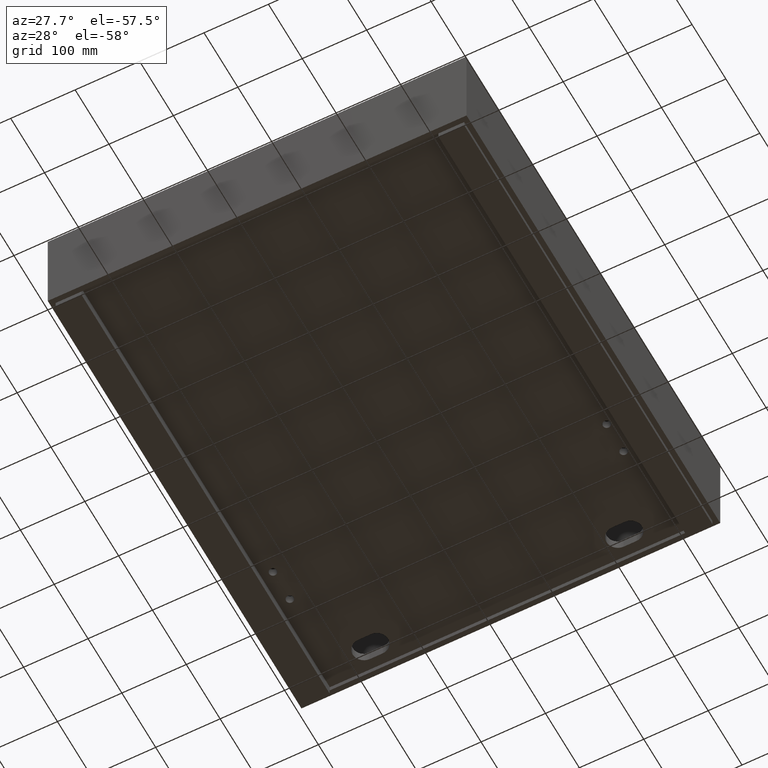
[diagram: clean part render]
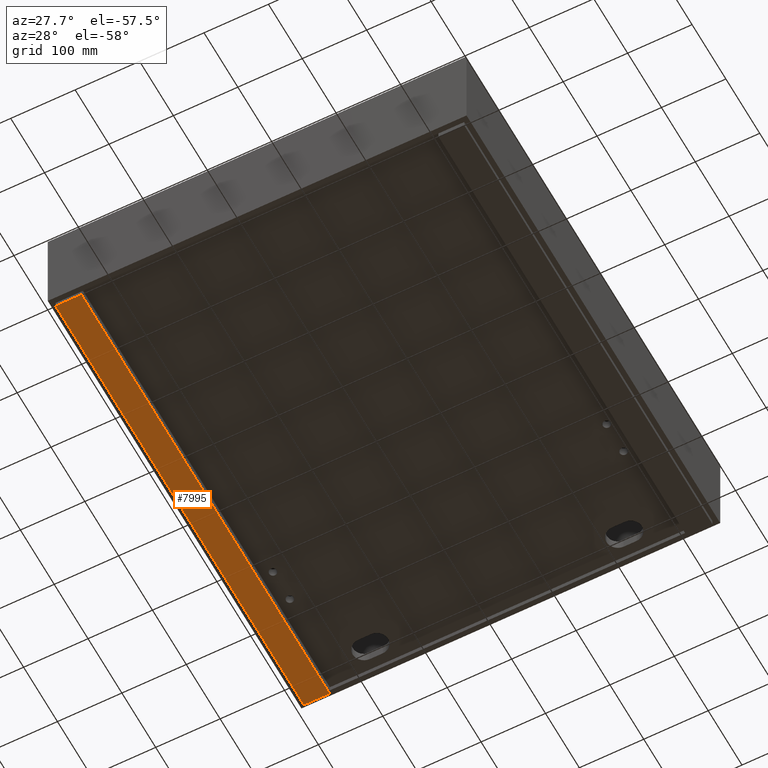
[diagram: same view with one face highlighted and labeled with its STEP entity id]
A machine part, auxiliary view. The second image highlights one B-rep face of the part: STEP entity #7995.
In plain terms, the highlighted planar face has unit normal (-0, 0, 1).
Its self-contained STEP definition (entity closure, byte-faithful):
#121 = VERTEX_POINT ( 'NONE', #4682 ) ;
#515 = CARTESIAN_POINT ( 'NONE',  ( 47.99999999999994316, 8.000000000000000000, -158.0000000000002558 ) ) ;
#1495 = LINE ( 'NONE', #4985, #9634 ) ;
#1614 = ORIENTED_EDGE ( 'NONE', *, *, #8960, .T. ) ;
#1617 = VECTOR ( 'NONE', #2359, 1000.000000000000000 ) ;
#1710 = DIRECTION ( 'NONE',  ( -1.134424071483470690E-16, -1.000000000000000000, 0.0000000000000000000 ) ) ;
#2206 = VECTOR ( 'NONE', #10923, 1000.000000000000000 ) ;
#2359 = DIRECTION ( 'NONE',  ( -1.000000000000000000, -0.0000000000000000000, -0.0000000000000000000 ) ) ;
#2956 = CARTESIAN_POINT ( 'NONE',  ( -2.419716848542008714E-15, 0.0000000000000000000, -158.0000000000002558 ) ) ;
#3220 = EDGE_CURVE ( 'NONE', #121, #6301, #1495, .T. ) ;
#3482 = CARTESIAN_POINT ( 'NONE',  ( 48.00000000000002842, 742.0000000000000000, -158.0000000000002558 ) ) ;
#3923 = LINE ( 'NONE', #7413, #2206 ) ;
#4186 = ORIENTED_EDGE ( 'NONE', *, *, #3220, .T. ) ;
#4682 = CARTESIAN_POINT ( 'NONE',  ( 7.999999999999910294, 8.000000000000000000, -158.0000000000002558 ) ) ;
#4803 = EDGE_LOOP ( 'NONE', ( #4186, #1614, #8546, #8192 ) ) ;
#4985 = CARTESIAN_POINT ( 'NONE',  ( 8.000000000000000000, 742.0000000000000000, -158.0000000000002558 ) ) ;
#5896 = EDGE_CURVE ( 'NONE', #11009, #8406, #6056, .T. ) ;
#6056 = LINE ( 'NONE', #9568, #6344 ) ;
#6301 = VERTEX_POINT ( 'NONE', #6899 ) ;
#6344 = VECTOR ( 'NONE', #1710, 1000.000000000000000 ) ;
#6444 = DIRECTION ( 'NONE',  ( -0.0000000000000000000, 0.0000000000000000000, 1.000000000000000000 ) ) ;
#6554 = EDGE_CURVE ( 'NONE', #8406, #121, #6703, .T. ) ;
#6703 = LINE ( 'NONE', #10218, #1617 ) ;
#6899 = CARTESIAN_POINT ( 'NONE',  ( 8.000000000000000000, 742.0000000000000000, -158.0000000000002558 ) ) ;
#7299 = FACE_OUTER_BOUND ( 'NONE', #4803, .T. ) ;
#7413 = CARTESIAN_POINT ( 'NONE',  ( 8.000000000000000000, 742.0000000000000000, -158.0000000000002558 ) ) ;
#7995 = ADVANCED_FACE ( 'NONE', ( #7299 ), #10811, .F. ) ;
#8192 = ORIENTED_EDGE ( 'NONE', *, *, #6554, .T. ) ;
#8406 = VERTEX_POINT ( 'NONE', #515 ) ;
#8480 = DIRECTION ( 'NONE',  ( 1.228959410773759853E-16, 1.000000000000000000, -0.0000000000000000000 ) ) ;
#8546 = ORIENTED_EDGE ( 'NONE', *, *, #5896, .T. ) ;
#8960 = EDGE_CURVE ( 'NONE', #6301, #11009, #3923, .T. ) ;
#9511 = AXIS2_PLACEMENT_3D ( 'NONE', #2956, #6444, #9953 ) ;
#9568 = CARTESIAN_POINT ( 'NONE',  ( 48.00000000000002842, 742.0000000000000000, -158.0000000000002558 ) ) ;
#9634 = VECTOR ( 'NONE', #8480, 1000.000000000000000 ) ;
#9953 = DIRECTION ( 'NONE',  ( 1.000000000000000000, 0.0000000000000000000, 0.0000000000000000000 ) ) ;
#10218 = CARTESIAN_POINT ( 'NONE',  ( 7.999999999999910294, 8.000000000000000000, -158.0000000000002558 ) ) ;
#10811 = PLANE ( 'NONE',  #9511 ) ;
#10923 = DIRECTION ( 'NONE',  ( 1.000000000000000000, 0.0000000000000000000, 0.0000000000000000000 ) ) ;
#11009 = VERTEX_POINT ( 'NONE', #3482 ) ;